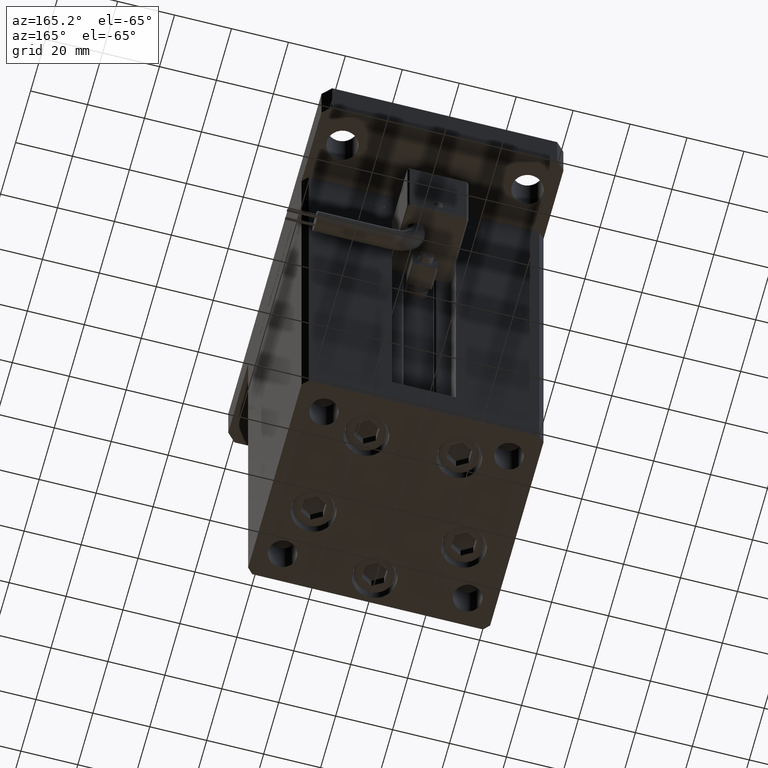
[diagram: clean part render]
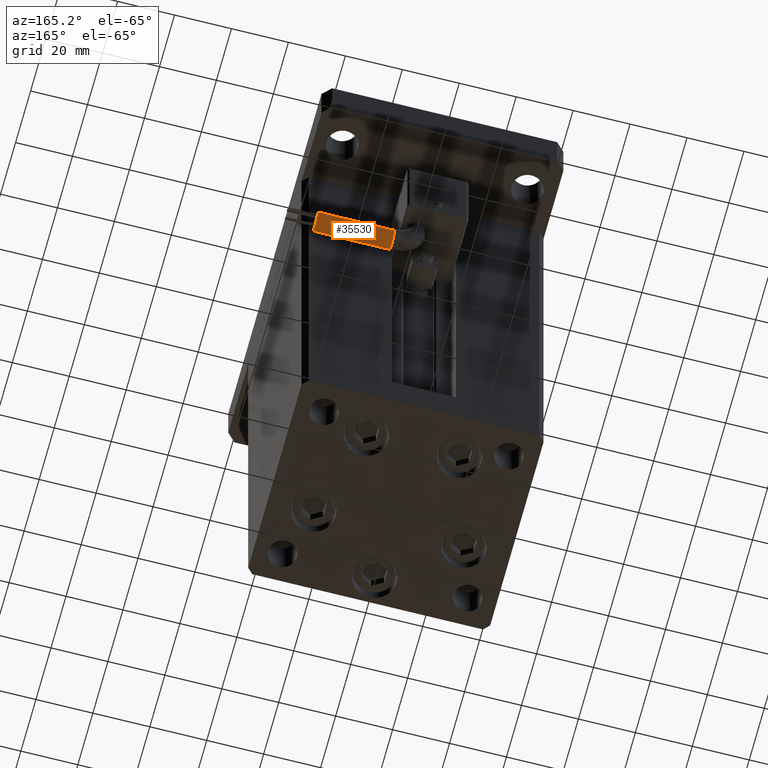
[diagram: same view with one face highlighted and labeled with its STEP entity id]
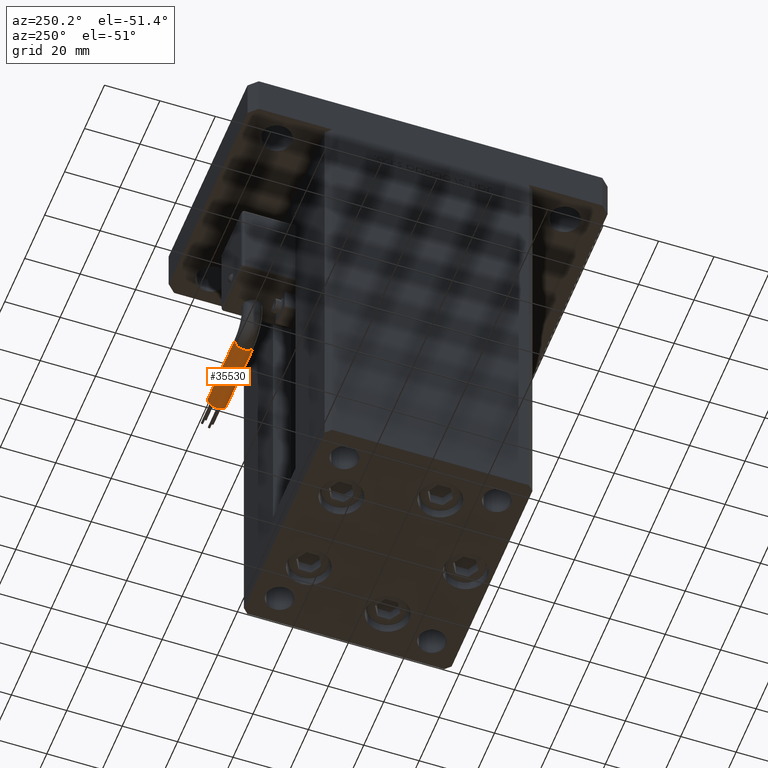
[diagram: same view with one face highlighted and labeled with its STEP entity id]
A machine part, auxiliary view. The second image highlights one B-rep face of the part: STEP entity #35530.
A second angle (auxiliary view) of the same face is appended — the face is thin or edge-on in the first view.
In plain terms, the highlighted cylindrical surface (edge-blend (fillet) strip) has radius 3.5 mm, axis along (1, -0, 0).
Its self-contained STEP definition (entity closure, byte-faithful):
#501 = AXIS2_PLACEMENT_3D ( 'NONE', #34794, #43375, #4744 ) ;
#729 = CARTESIAN_POINT ( 'NONE',  ( 13.79999999999999893, 45.50000000000000711, -65.00000000000000000 ) ) ;
#3652 = CARTESIAN_POINT ( 'NONE',  ( 13.79999999999999716, 38.50000000000000000, -65.00000000000000000 ) ) ;
#4744 = DIRECTION ( 'NONE',  ( -4.956352788505158337E-16, -1.000000000000000000, 0.000000000000000000 ) ) ;
#7797 = AXIS2_PLACEMENT_3D ( 'NONE', #51051, #12410, #43018 ) ;
#8128 = CARTESIAN_POINT ( 'NONE',  ( 13.79999999999999893, 42.00000000000000000, -65.00000000000000000 ) ) ;
#8821 = DIRECTION ( 'NONE',  ( 1.000000000000000000, -2.599999999999999847E-16, 2.220446049250000002E-16 ) ) ;
#8865 = CARTESIAN_POINT ( 'NONE',  ( 40.80000000000000426, 42.00000000000000000, -65.00000000000000000 ) ) ;
#11246 = CARTESIAN_POINT ( 'NONE',  ( 40.80000000000000426, 38.50000000000000000, -65.00000000000000000 ) ) ;
#11409 = VERTEX_POINT ( 'NONE', #53104 ) ;
#11994 = CARTESIAN_POINT ( 'NONE',  ( 13.80000000000000071, 45.50000000000000711, -65.00000000000000000 ) ) ;
#12410 = DIRECTION ( 'NONE',  ( 1.000000000000000000, 0.000000000000000000, 2.220446049250000002E-16 ) ) ;
#12823 = ORIENTED_EDGE ( 'NONE', *, *, #27549, .T. ) ;
#14003 = DIRECTION ( 'NONE',  ( 0.000000000000000000, 0.000000000000000000, -1.000000000000000000 ) ) ;
#17616 = CYLINDRICAL_SURFACE ( 'NONE', #501, 3.500000000000003109 ) ;
#17945 = VERTEX_POINT ( 'NONE', #20507 ) ;
#20507 = CARTESIAN_POINT ( 'NONE',  ( 13.79999999999999893, 38.50000000000000000, -65.00000000000000000 ) ) ;
#23190 = EDGE_CURVE ( 'NONE', #17945, #29010, #33146, .T. ) ;
#23565 = ORIENTED_EDGE ( 'NONE', *, *, #51116, .F. ) ;
#25143 = ORIENTED_EDGE ( 'NONE', *, *, #32705, .T. ) ;
#25427 = LINE ( 'NONE', #11994, #48889 ) ;
#25652 = FACE_OUTER_BOUND ( 'NONE', #46453, .T. ) ;
#27549 = EDGE_CURVE ( 'NONE', #33407, #32284, #25427, .T. ) ;
#28186 = EDGE_CURVE ( 'NONE', #17945, #11409, #32483, .T. ) ;
#28822 = CARTESIAN_POINT ( 'NONE',  ( 40.80000000000000426, 45.50000000000000711, -65.00000000000000000 ) ) ;
#29010 = VERTEX_POINT ( 'NONE', #11246 ) ;
#30894 = DIRECTION ( 'NONE',  ( 1.000000000000000000, 0.000000000000000000, 2.220446049250000002E-16 ) ) ;
#32284 = VERTEX_POINT ( 'NONE', #28822 ) ;
#32483 = CIRCLE ( 'NONE', #7797, 3.500000000000003109 ) ;
#32705 = EDGE_CURVE ( 'NONE', #11409, #33407, #38897, .T. ) ;
#33146 = LINE ( 'NONE', #3652, #33217 ) ;
#33217 = VECTOR ( 'NONE', #33982, 1000.000000000000000 ) ;
#33407 = VERTEX_POINT ( 'NONE', #729 ) ;
#33442 = AXIS2_PLACEMENT_3D ( 'NONE', #8128, #33597, #51610 ) ;
#33597 = DIRECTION ( 'NONE',  ( 1.000000000000000000, 0.000000000000000000, 2.220446049250000002E-16 ) ) ;
#33982 = DIRECTION ( 'NONE',  ( 1.000000000000000000, -2.599999999999999847E-16, 2.220446049250000002E-16 ) ) ;
#34794 = CARTESIAN_POINT ( 'NONE',  ( 13.79999999999999893, 42.00000000000000000, -65.00000000000000000 ) ) ;
#35530 = ADVANCED_FACE ( 'NONE', ( #25652 ), #17616, .T. ) ;
#38897 = CIRCLE ( 'NONE', #33442, 3.500000000000003109 ) ;
#42035 = AXIS2_PLACEMENT_3D ( 'NONE', #8865, #30894, #14003 ) ;
#43018 = DIRECTION ( 'NONE',  ( 0.000000000000000000, 0.000000000000000000, -1.000000000000000000 ) ) ;
#43375 = DIRECTION ( 'NONE',  ( 1.000000000000000000, -2.599999999999999847E-16, 2.220446049250000002E-16 ) ) ;
#46015 = ORIENTED_EDGE ( 'NONE', *, *, #23190, .F. ) ;
#46453 = EDGE_LOOP ( 'NONE', ( #48208, #25143, #12823, #23565, #46015 ) ) ;
#48208 = ORIENTED_EDGE ( 'NONE', *, *, #28186, .T. ) ;
#48889 = VECTOR ( 'NONE', #8821, 1000.000000000000000 ) ;
#51051 = CARTESIAN_POINT ( 'NONE',  ( 13.79999999999999893, 42.00000000000000000, -65.00000000000000000 ) ) ;
#51116 = EDGE_CURVE ( 'NONE', #29010, #32284, #52100, .T. ) ;
#51610 = DIRECTION ( 'NONE',  ( 0.000000000000000000, 0.000000000000000000, -1.000000000000000000 ) ) ;
#52100 = CIRCLE ( 'NONE', #42035, 3.500000000000003109 ) ;
#53104 = CARTESIAN_POINT ( 'NONE',  ( 13.79999999999999893, 42.00000000000000000, -68.50000000000000000 ) ) ;